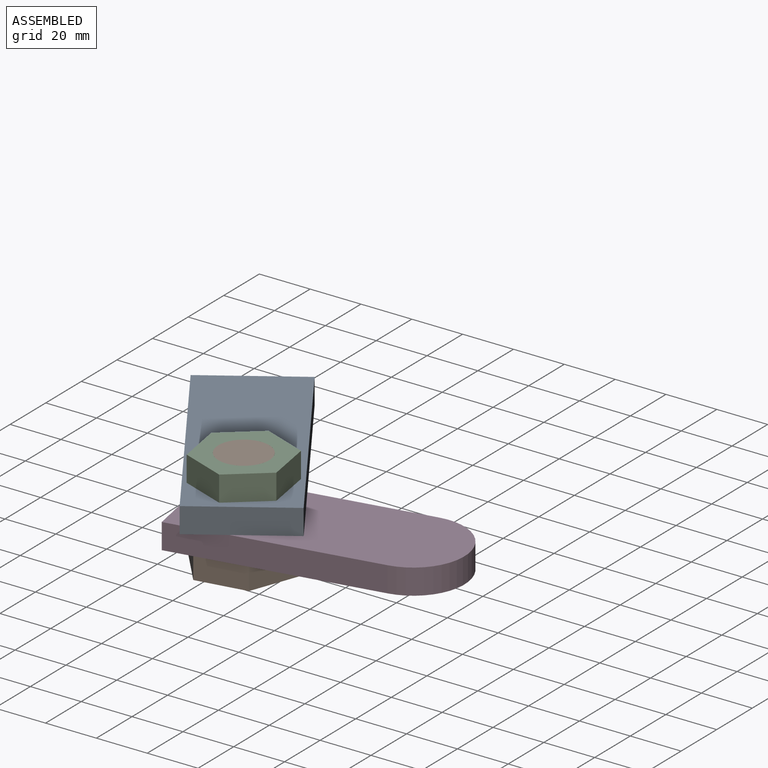
[diagram: assembled view]
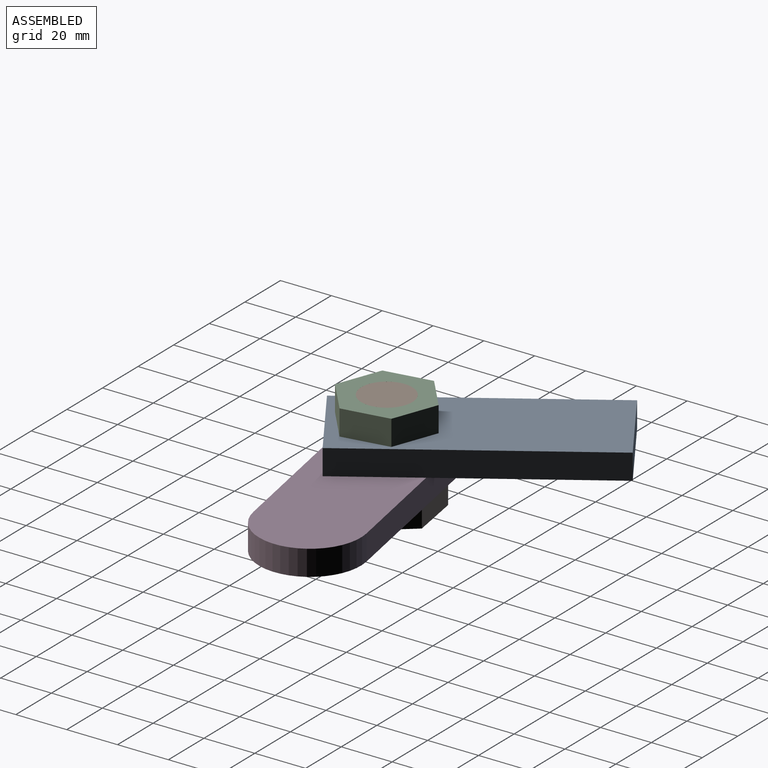
[diagram: assembled view, second angle]
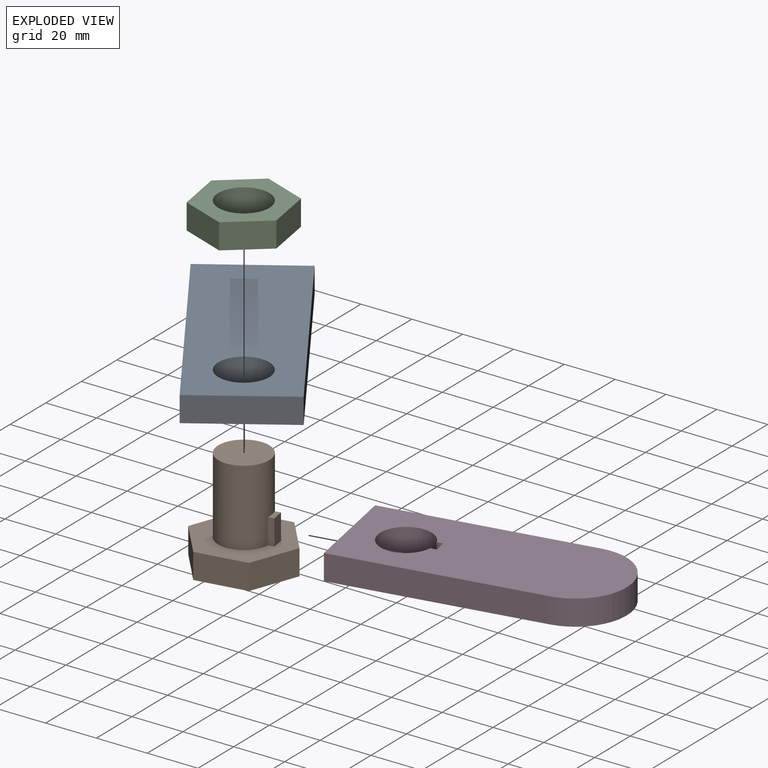
[diagram: exploded view]
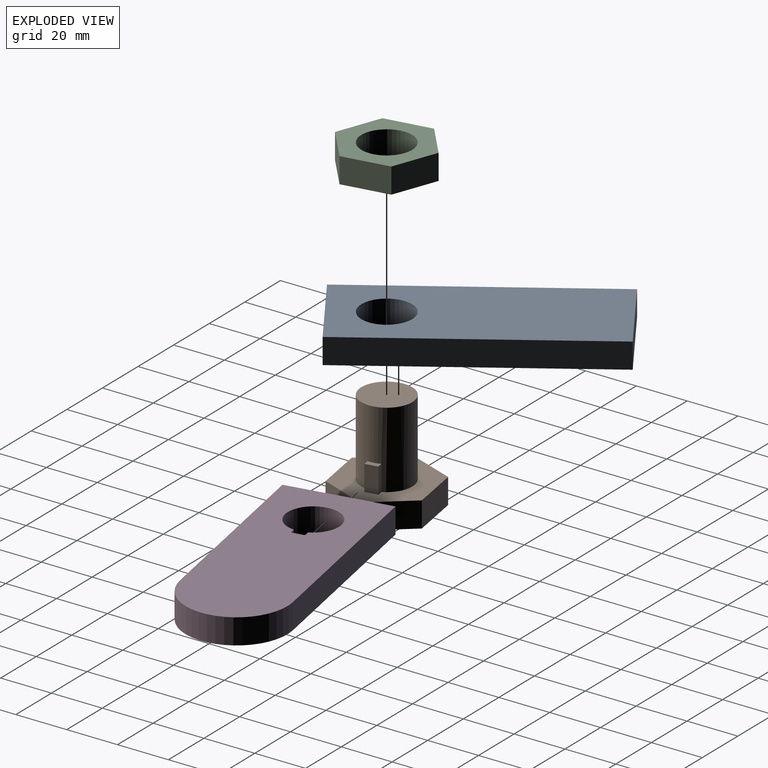
[diagram: exploded view, second angle]
ASSEMBLY  parts=4 mates=3
PART A: 7 faces, bbox 100x40x10 mm
  f0: plane 100x10mm, normal (0,-1,0), area 1000mm2, adj f1,f4,f5,f6
  f1: plane 40x10mm, normal (1,0,0), area 400mm2, adj f0,f2,f5,f6
  f2: plane 100x10mm, normal (0,1,0), area 1000mm2, adj f1,f4,f5,f6
  f3: cylinder r=10mm len=20mm, axis (0,0,-1), area 628.3mm2, adj f5,f6
  f4: plane 40x10mm, normal (-1,0,0), area 400mm2, adj f0,f2,f5,f6
  f5: plane 100x40mm, normal (0,0,1), area 3685.8mm2, adj f0,f1,f2,f3,f4
  f6: plane 100x40mm, normal (0,0,-1), area 3685.8mm2, adj f0,f1,f2,f3,f4
PART B: 14 faces, bbox 39.6x34.6x40 mm
  f0: cylinder r=10mm len=30mm, axis (0,0,-1), area 1834.4mm2, adj f1,f2,f3,f5,f6
  f1: plane 20x20mm, normal (0,0,1), area 314.2mm2, adj f0
  f2: plane 10x2.32mm, normal (0,1,0), area 23.2mm2, adj f0,f4,f5,f6
  f3: plane 10x2.32mm, normal (0,-1,0), area 23.2mm2, adj f0,f4,f5,f6
  f4: plane 10x5mm, normal (1,0,0), area 50mm2, adj f2,f3,f5,f6
  f5: plane 5x2.32mm, normal (0,0,1), area 10.5mm2, adj f0,f2,f3,f4
  f6: plane 39.63x34.64mm, normal (0,0,1), area 695.9mm2, adj f0,f2,f3,f4,f7,f8,f9,f10
  f7: plane 17.32x10mm, normal (-0.87,-0.49,0), area 198.2mm2, adj f6,f8,f12,f13
  f8: plane 19.82x10mm, normal (-0.02,-1,0), area 198.2mm2, adj f6,f7,f9,f13
  f9: plane 17x10.18mm, normal (0.86,-0.51,0), area 198.2mm2, adj f6,f8,f10,f13
  f10: plane 17.32x10mm, normal (0.87,0.49,0), area 198.2mm2, adj f6,f9,f11,f13
  f11: plane 19.82x10mm, normal (0.02,1,0), area 198.2mm2, adj f6,f10,f12,f13
  f12: plane 17x10.18mm, normal (-0.86,0.51,0), area 198.2mm2, adj f6,f7,f11,f13
  f13: plane 39.63x34.64mm, normal (0,0,-1), area 1020.6mm2, adj f7,f8,f9,f10,f11,f12
PART C: 9 faces, bbox 34.6x36.5x10 mm
  f0: plane 18.24x10mm, normal (-0.99,-0.17,0), area 184.9mm2, adj f1,f6,f7,f8
  f1: plane 17.32x10mm, normal (-0.35,-0.94,0), area 184.9mm2, adj f0,f2,f7,f8
  f2: plane 14.26x11.76mm, normal (0.64,-0.77,0), area 184.9mm2, adj f1,f3,f7,f8
  f3: plane 18.24x10mm, normal (0.99,0.17,0), area 184.9mm2, adj f2,f4,f7,f8
  f4: plane 17.32x10mm, normal (0.35,0.94,0), area 184.9mm2, adj f3,f6,f7,f8
  f5: cylinder r=10mm len=20mm, axis (0,0,1), area 628.3mm2, adj f7,f8
  f6: plane 14.26x11.76mm, normal (-0.64,0.77,0), area 184.9mm2, adj f0,f4,f7,f8
  f7: plane 36.47x34.64mm, normal (0,0,-1), area 574.1mm2, adj f0,f1,f2,f3,f4,f5,f6
  f8: plane 36.47x34.64mm, normal (0,0,1), area 574.1mm2, adj f0,f1,f2,f3,f4,f5,f6
PART D: 10 faces, bbox 100x40x10 mm
  f0: plane 80x10mm, normal (0,-1,0), area 800mm2, adj f1,f7,f8,f9
  f1: cylinder r=20mm len=40mm, axis (0,0,1), area 628.3mm2, adj f0,f2,f8,f9
  f2: plane 80x10mm, normal (0,1,0), area 800mm2, adj f1,f7,f8,f9
  f3: plane 10x5mm, normal (-1,0,0), area 50mm2, adj f4,f6,f8,f9
  f4: plane 10x2.32mm, normal (0,1,0), area 23.2mm2, adj f3,f5,f8,f9
  f5: cylinder r=10mm len=20mm, axis (0,0,1), area 577.8mm2, adj f4,f6,f8,f9
  f6: plane 10x2.32mm, normal (0,-1,0), area 23.2mm2, adj f3,f5,f8,f9
  f7: plane 40x10mm, normal (-1,0,0), area 400mm2, adj f0,f2,f8,f9
  f8: plane 100x40mm, normal (0,0,-1), area 3503.6mm2, adj f0,f1,f2,f3,f4,f5,f6,f7
  f9: plane 100x40mm, normal (0,0,1), area 3503.6mm2, adj f0,f1,f2,f3,f4,f5,f6,f7
PLACE A rot(axis=(0,0,1),123deg) t=(-45.73,-15.37,-20.96)mm
PLACE B rot(axis=(0,0,1),10.6deg) t=(-73.39,-9.47,-30.96)mm
PLACE C t=(-73.39,-9.47,-0.96)mm
PLACE D rot(axis=(0,0,1),10.6deg) t=(-89.36,-32.82,-20.96)mm
MATE revolute B.f0 <-> C.f5  axis (0,0,1) through (-73.39,-9.47,-0.96)mm
MATE revolute A.f3 <-> D.f5  axis (0,0,-1) through (-73.39,-9.47,-20.96)mm
MATE fastened B.f4 <-> D.f3  axis (0.98,0.18,0) through (-61.6,-7.26,-25.96)mm
